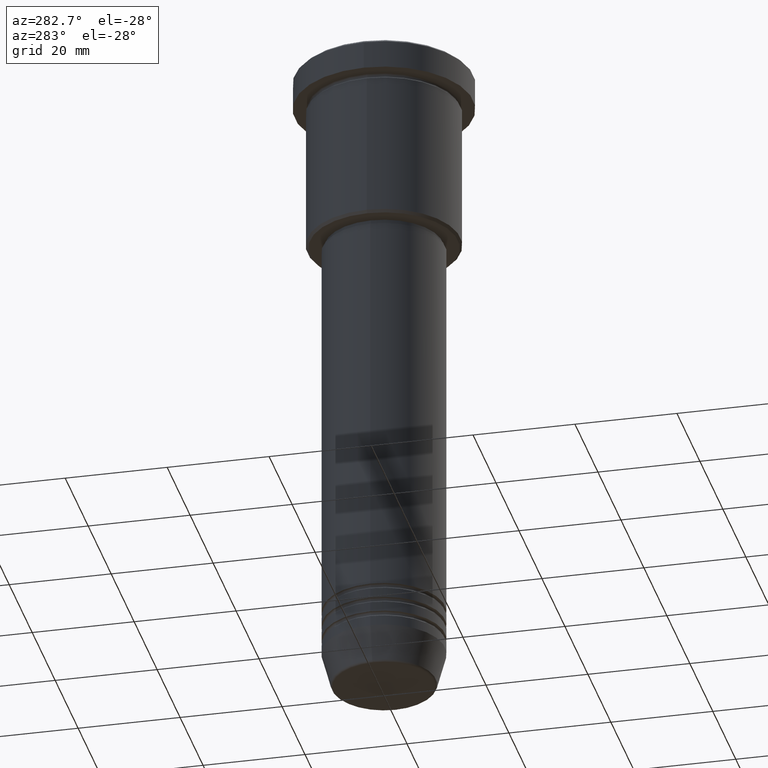
[diagram: clean part render]
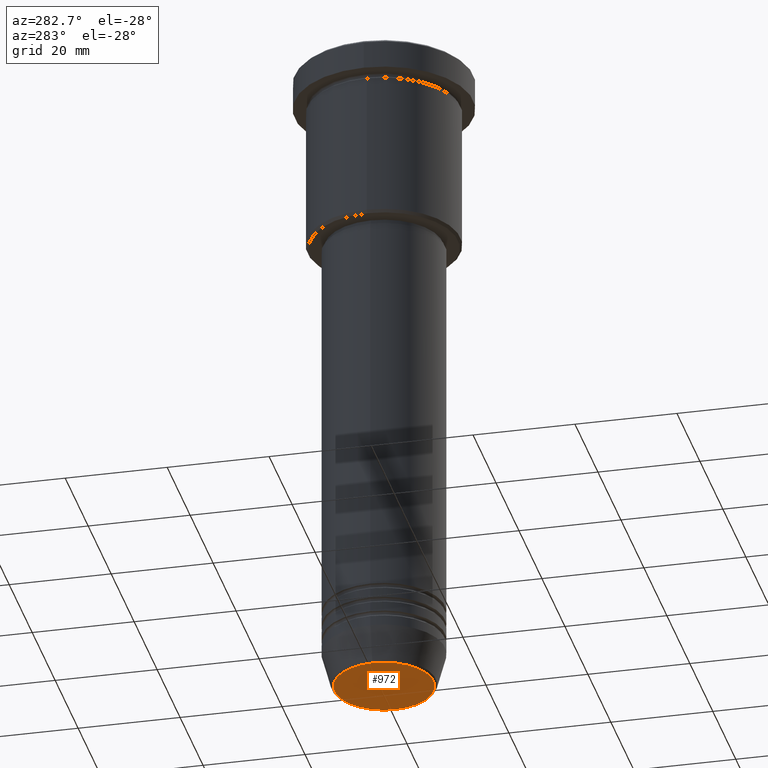
[diagram: same view with one face highlighted and labeled with its STEP entity id]
A machine part, auxiliary view. The second image highlights one B-rep face of the part: STEP entity #972.
In plain terms, the highlighted planar face has unit normal (0, -0, 1).
Its self-contained STEP definition (entity closure, byte-faithful):
#41 = CIRCLE ( 'NONE', #796, 9.740692158992654726 ) ;
#129 = DIRECTION ( 'NONE',  ( 1.000000000000000000, 0.000000000000000000, 0.000000000000000000 ) ) ;
#218 = DIRECTION ( 'NONE',  ( 0.000000000000000000, -0.000000000000000000, 1.000000000000000000 ) ) ;
#227 = DIRECTION ( 'NONE',  ( 0.000000000000000000, 0.000000000000000000, -1.000000000000000000 ) ) ;
#293 = AXIS2_PLACEMENT_3D ( 'NONE', #1033, #218, #129 ) ;
#316 = EDGE_LOOP ( 'NONE', ( #1086, #537 ) ) ;
#321 = CARTESIAN_POINT ( 'NONE',  ( 0.000000000000000000, 0.000000000000000000, -131.0000000000000000 ) ) ;
#339 = DIRECTION ( 'NONE',  ( 1.000000000000000000, 0.000000000000000000, 0.000000000000000000 ) ) ;
#399 = PLANE ( 'NONE',  #293 ) ;
#419 = DIRECTION ( 'NONE',  ( 1.000000000000000000, 0.000000000000000000, 0.000000000000000000 ) ) ;
#537 = ORIENTED_EDGE ( 'NONE', *, *, #1058, .T. ) ;
#654 = CARTESIAN_POINT ( 'NONE',  ( 9.740692158992654726, 0.000000000000000000, -131.0000000000000000 ) ) ;
#663 = FACE_OUTER_BOUND ( 'NONE', #316, .T. ) ;
#683 = CIRCLE ( 'NONE', #834, 9.740692158992654726 ) ;
#769 = CARTESIAN_POINT ( 'NONE',  ( -9.740692158992654726, 1.222463696683474604E-15, -131.0000000000000000 ) ) ;
#783 = DIRECTION ( 'NONE',  ( 0.000000000000000000, 0.000000000000000000, -1.000000000000000000 ) ) ;
#796 = AXIS2_PLACEMENT_3D ( 'NONE', #865, #783, #339 ) ;
#834 = AXIS2_PLACEMENT_3D ( 'NONE', #321, #227, #419 ) ;
#865 = CARTESIAN_POINT ( 'NONE',  ( 0.000000000000000000, 0.000000000000000000, -131.0000000000000000 ) ) ;
#972 = ADVANCED_FACE ( 'NONE', ( #663 ), #399, .F. ) ;
#995 = VERTEX_POINT ( 'NONE', #654 ) ;
#1033 = CARTESIAN_POINT ( 'NONE',  ( 0.000000000000000000, 0.000000000000000000, -131.0000000000000000 ) ) ;
#1058 = EDGE_CURVE ( 'NONE', #1116, #995, #683, .T. ) ;
#1086 = ORIENTED_EDGE ( 'NONE', *, *, #1118, .T. ) ;
#1116 = VERTEX_POINT ( 'NONE', #769 ) ;
#1118 = EDGE_CURVE ( 'NONE', #995, #1116, #41, .T. ) ;